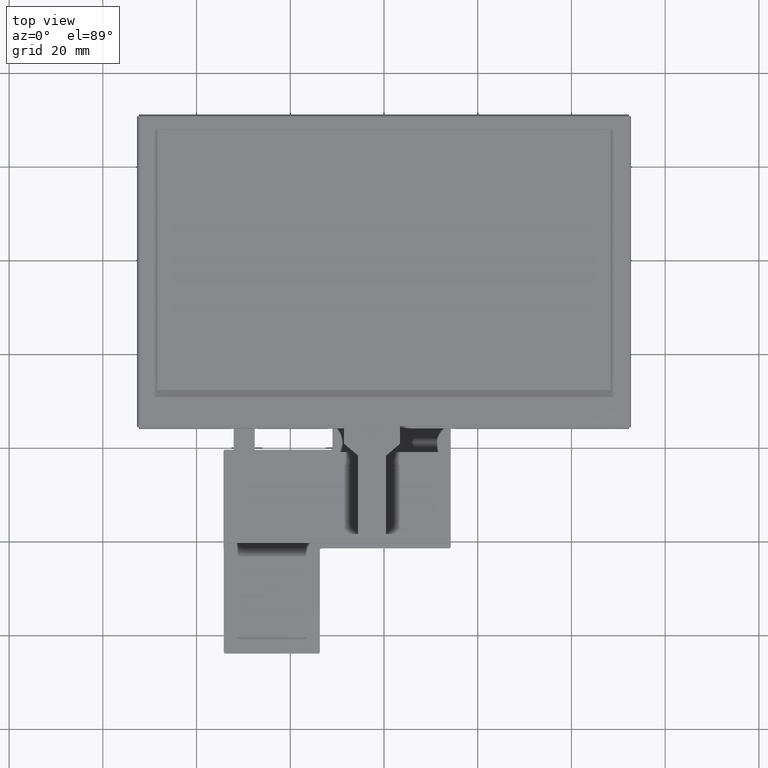
[diagram: clean part render]
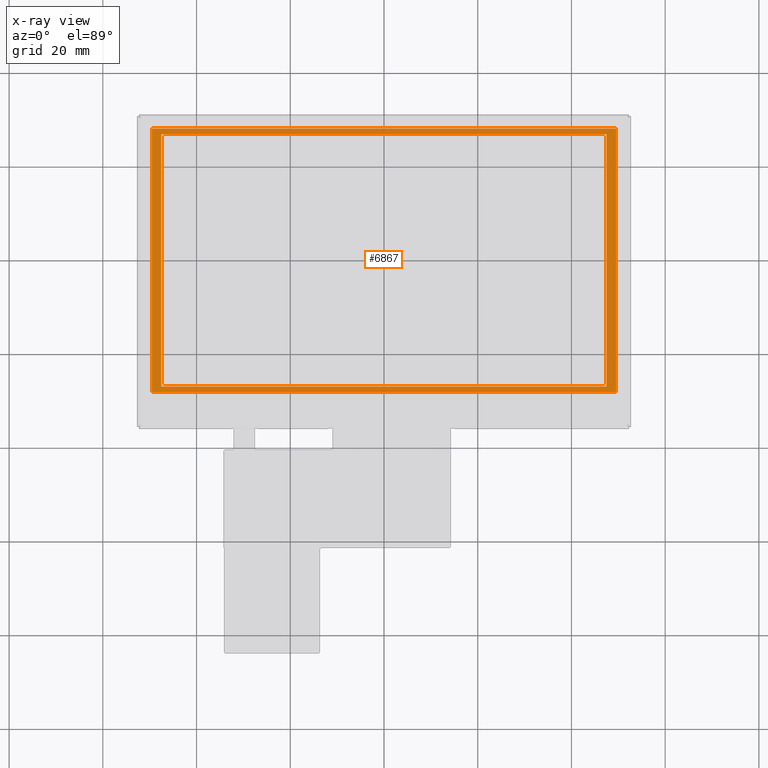
[diagram: x-ray — body ghosted, one internal face saturated and labeled with its STEP entity id]
A machine part, top view, then the same camera in x-ray: the body is ghosted and one INTERNAL B-rep face — a face not visible from any outside direction — is saturated and labeled: STEP entity #6867.
In plain terms, the highlighted planar face has unit normal (0, 0, -1).
Its self-contained STEP definition (entity closure, byte-faithful):
#63=FACE_BOUND('',#1084,.T.);
#370=PLANE('',#7291);
#719=FACE_OUTER_BOUND('',#1083,.T.);
#1083=EDGE_LOOP('',(#6475,#6476,#6477,#6478));
#1084=EDGE_LOOP('',(#6479,#6480,#6481,#6482));
#1961=LINE('',#11870,#2854);
#1965=LINE('',#11877,#2858);
#1968=LINE('',#11883,#2861);
#1970=LINE('',#11886,#2863);
#1972=LINE('',#11891,#2865);
#1975=LINE('',#11896,#2868);
#1977=LINE('',#11900,#2870);
#1978=LINE('',#11902,#2871);
#2854=VECTOR('',#8950,10.);
#2858=VECTOR('',#8956,10.);
#2861=VECTOR('',#8961,10.);
#2863=VECTOR('',#8965,10.);
#2865=VECTOR('',#8969,10.);
#2868=VECTOR('',#8974,10.);
#2870=VECTOR('',#8978,10.);
#2871=VECTOR('',#8981,10.);
#3549=VERTEX_POINT('',#11867);
#3550=VERTEX_POINT('',#11869);
#3552=VERTEX_POINT('',#11875);
#3554=VERTEX_POINT('',#11881);
#3555=VERTEX_POINT('',#11888);
#3556=VERTEX_POINT('',#11890);
#3557=VERTEX_POINT('',#11894);
#3558=VERTEX_POINT('',#11898);
#4517=EDGE_CURVE('',#3549,#3550,#1961,.T.);
#4521=EDGE_CURVE('',#3552,#3549,#1965,.T.);
#4524=EDGE_CURVE('',#3554,#3552,#1968,.T.);
#4526=EDGE_CURVE('',#3550,#3554,#1970,.T.);
#4528=EDGE_CURVE('',#3555,#3556,#1972,.T.);
#4531=EDGE_CURVE('',#3557,#3555,#1975,.T.);
#4533=EDGE_CURVE('',#3558,#3557,#1977,.T.);
#4534=EDGE_CURVE('',#3556,#3558,#1978,.T.);
#6475=ORIENTED_EDGE('',*,*,#4534,.F.);
#6476=ORIENTED_EDGE('',*,*,#4528,.F.);
#6477=ORIENTED_EDGE('',*,*,#4531,.F.);
#6478=ORIENTED_EDGE('',*,*,#4533,.F.);
#6479=ORIENTED_EDGE('',*,*,#4526,.F.);
#6480=ORIENTED_EDGE('',*,*,#4517,.F.);
#6481=ORIENTED_EDGE('',*,*,#4521,.F.);
#6482=ORIENTED_EDGE('',*,*,#4524,.F.);
#6867=ADVANCED_FACE('',(#719,#63),#370,.F.);
#7291=AXIS2_PLACEMENT_3D('',#11903,#8982,#8983);
#8950=DIRECTION('',(2.16453909658425E-16,1.,0.));
#8956=DIRECTION('',(1.,-9.96375139697508E-17,0.));
#8961=DIRECTION('',(3.94430452610506E-31,-1.,0.));
#8965=DIRECTION('',(-1.,2.16453909658425E-16,0.));
#8969=DIRECTION('',(-1.,2.16453909658425E-16,0.));
#8974=DIRECTION('',(-2.16453909658425E-16,-1.,0.));
#8978=DIRECTION('',(1.,-2.16453909658425E-16,0.));
#8981=DIRECTION('',(2.16453909658425E-16,1.,0.));
#8982=DIRECTION('center_axis',(0.,0.,-1.));
#8983=DIRECTION('ref_axis',(-1.,2.16453909658425E-16,0.));
#11867=CARTESIAN_POINT('',(47.5199999999998,-26.9280000000001,-1.4));
#11869=CARTESIAN_POINT('',(47.5199999999998,26.9279999999999,-1.4));
#11870=CARTESIAN_POINT('',(47.5199999999998,26.9279999999999,-1.4));
#11875=CARTESIAN_POINT('',(-47.5200000000001,-26.9280000000001,-1.4));
#11877=CARTESIAN_POINT('',(47.5199999999998,-26.9280000000001,-1.4));
#11881=CARTESIAN_POINT('',(-47.5200000000004,26.9279999999999,-1.4));
#11883=CARTESIAN_POINT('',(-47.5200000000001,-26.9280000000001,-1.4));
#11886=CARTESIAN_POINT('',(-47.5200000000004,26.9279999999999,-1.4));
#11888=CARTESIAN_POINT('',(49.4999999999996,-28.1120000000001,-1.4));
#11890=CARTESIAN_POINT('',(-49.5000000000002,-28.1120000000001,-1.4));
#11891=CARTESIAN_POINT('',(-49.5000000000002,-28.1120000000001,-1.4));
#11894=CARTESIAN_POINT('',(49.4999999999996,28.1479999999999,-1.4));
#11896=CARTESIAN_POINT('',(49.4999999999996,-28.1120000000001,-1.4));
#11898=CARTESIAN_POINT('',(-49.5000000000002,28.1479999999999,-1.4));
#11900=CARTESIAN_POINT('',(49.4999999999996,28.1479999999999,-1.4));
#11902=CARTESIAN_POINT('',(-49.5000000000002,28.1479999999999,-1.4));
#11903=CARTESIAN_POINT('Origin',(-2.8421709430404E-13,0.017999999999887,
-1.4));